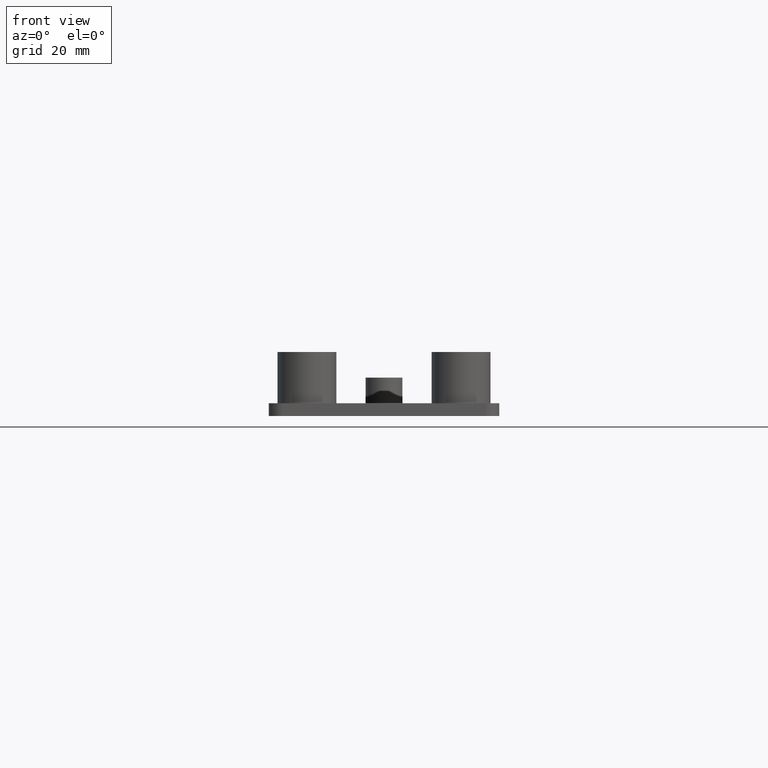
[diagram: clean part render]
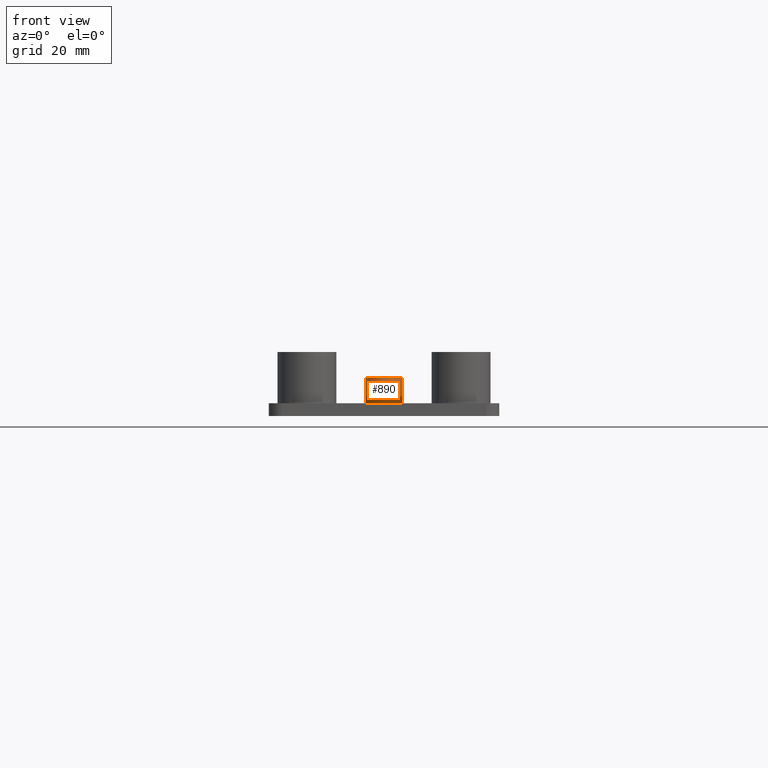
[diagram: same view with one face highlighted and labeled with its STEP entity id]
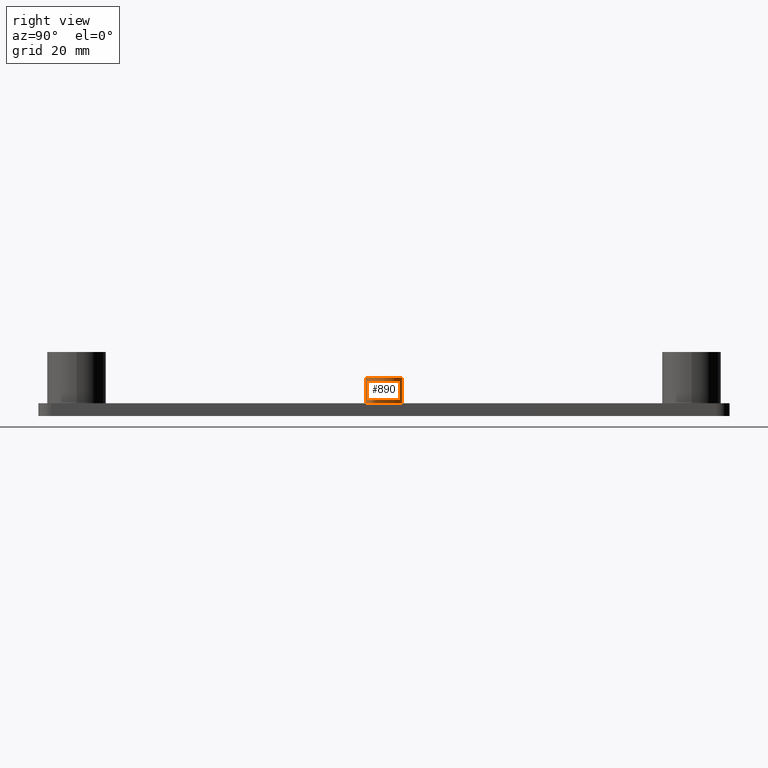
[diagram: same view with one face highlighted and labeled with its STEP entity id]
A machine part, front view. The second image highlights one B-rep face of the part: STEP entity #890.
A second angle (right view) of the same face is appended — the face is thin or edge-on in the first view.
In plain terms, the highlighted cylindrical surface (bore or boss wall) has radius 3.6 mm, axis along (0, 0, 1).
Its self-contained STEP definition (entity closure, byte-faithful):
#353=CARTESIAN_POINT('',(-3.599999999985601,0.0,0.0));
#354=VERTEX_POINT('',#353);
#355=CARTESIAN_POINT('',(3.599999999985585,0.0,0.0));
#356=VERTEX_POINT('',#355);
#357=CARTESIAN_POINT('',(0.0,0.0,0.0));
#358=DIRECTION('',(0.0,0.0,1.0));
#359=DIRECTION('',(1.0,0.0,0.0));
#360=AXIS2_PLACEMENT_3D('',#357,#358,#359);
#361=CIRCLE('',#360,3.599999999985601);
#362=EDGE_CURVE('',#354,#356,#361,.T.);
#364=CARTESIAN_POINT('',(0.0,0.0,0.0));
#365=DIRECTION('',(0.0,0.0,1.0));
#366=DIRECTION('',(1.0,0.0,0.0));
#367=AXIS2_PLACEMENT_3D('',#364,#365,#366);
#368=CIRCLE('',#367,3.599999999985601);
#369=EDGE_CURVE('',#356,#354,#368,.T.);
#856=CARTESIAN_POINT('',(0.0,0.0,0.0));
#857=DIRECTION('',(0.0,0.0,1.0));
#858=DIRECTION('',(1.0,0.0,0.0));
#859=AXIS2_PLACEMENT_3D('',#856,#857,#858);
#860=CYLINDRICAL_SURFACE('',#859,3.599999999985601);
#861=CARTESIAN_POINT('',(-3.599999999985601,0.0,5.0));
#862=VERTEX_POINT('',#861);
#863=CARTESIAN_POINT('',(3.599999999985585,0.0,5.0));
#864=VERTEX_POINT('',#863);
#865=CARTESIAN_POINT('',(0.0,0.0,5.0));
#866=DIRECTION('',(0.0,0.0,1.0));
#867=DIRECTION('',(1.0,0.0,0.0));
#868=AXIS2_PLACEMENT_3D('',#865,#866,#867);
#869=CIRCLE('',#868,3.599999999985601);
#870=EDGE_CURVE('',#862,#864,#869,.T.);
#871=ORIENTED_EDGE('',*,*,#870,.F.);
#872=CARTESIAN_POINT('',(0.0,0.0,5.0));
#873=DIRECTION('',(0.0,0.0,1.0));
#874=DIRECTION('',(1.0,0.0,0.0));
#875=AXIS2_PLACEMENT_3D('',#872,#873,#874);
#876=CIRCLE('',#875,3.599999999985601);
#877=EDGE_CURVE('',#864,#862,#876,.T.);
#878=ORIENTED_EDGE('',*,*,#877,.F.);
#879=CARTESIAN_POINT('',(3.599999999985585,0.0,0.0));
#880=DIRECTION('',(0.0,0.0,1.0));
#881=VECTOR('',#880,5.0);
#882=LINE('',#879,#881);
#883=EDGE_CURVE('',#356,#864,#882,.T.);
#884=ORIENTED_EDGE('',*,*,#883,.F.);
#885=ORIENTED_EDGE('',*,*,#369,.T.);
#886=ORIENTED_EDGE('',*,*,#362,.T.);
#887=ORIENTED_EDGE('',*,*,#883,.T.);
#888=EDGE_LOOP('',(#871,#878,#884,#885,#886,#887));
#889=FACE_OUTER_BOUND('',#888,.T.);
#890=ADVANCED_FACE('',(#889),#860,.T.);